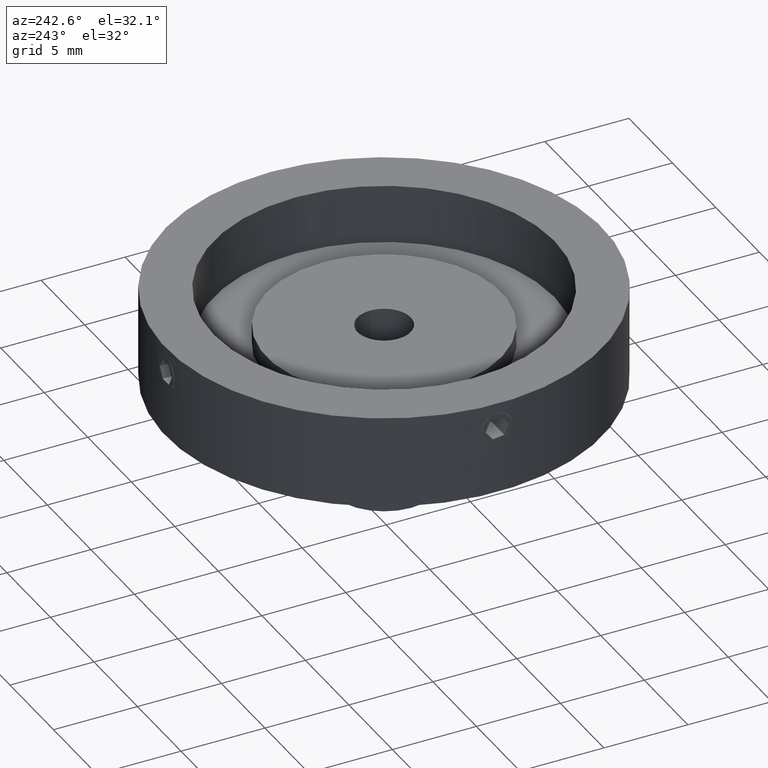
[diagram: clean part render]
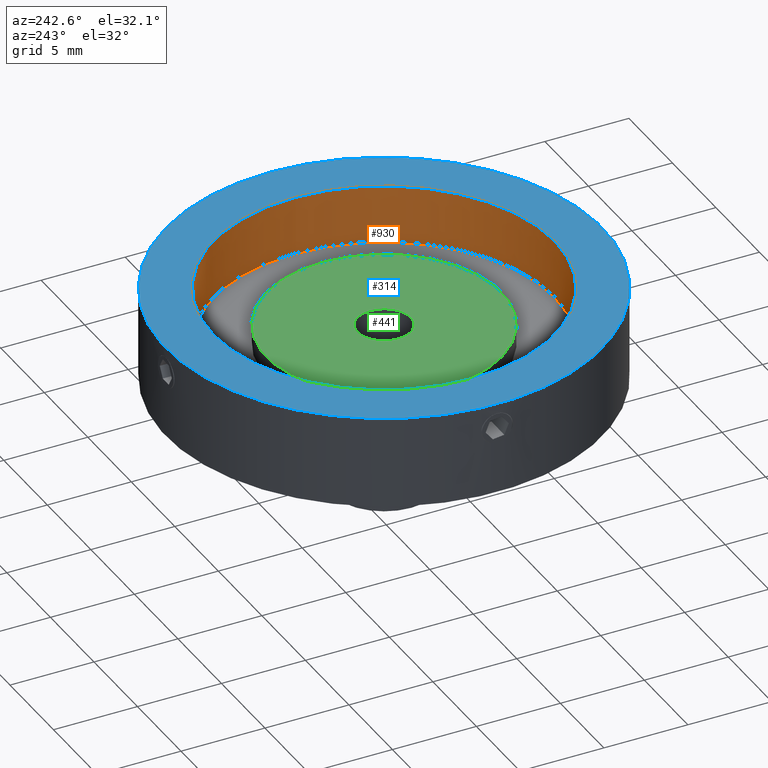
[diagram: same view with three faces highlighted in distinct colors, each labeled with its STEP entity id]
A machine part, auxiliary view with three faces highlighted in distinct colors.
Their STEP definitions:

[orange] entity #930 — the highlighted cylindrical surface (bore or boss wall) has radius 10.15 mm, axis along (-0, -0, 1).
#2 = CARTESIAN_POINT ( 'NONE',  ( -11.94095662322291700, -2.315469222874758000, 30.39359010343525500 ) ) ;
#20 = CIRCLE ( 'NONE', #438, 10.15000000000000000 ) ;
#28 = CARTESIAN_POINT ( 'NONE',  ( -2.462400004729964100, 8.614506576692752700, 30.99137819429888200 ) ) ;
#31 = CARTESIAN_POINT ( 'NONE',  ( -11.97082569492483700, -1.306087349653736000, 29.72082075555417200 ) ) ;
#40 = CARTESIAN_POINT ( 'NONE',  ( -1.419270293473195300, 8.626876235089652000, 31.19884406052706900 ) ) ;
#69 = ORIENTED_EDGE ( 'NONE', *, *, #523, .F. ) ;
#75 = CARTESIAN_POINT ( 'NONE',  ( -2.241173839156921100, 8.626865077204794100, 31.21295510663454200 ) ) ;
#132 = CARTESIAN_POINT ( 'NONE',  ( -11.97253057819572100, -1.724152397469301400, 29.69992440090064500 ) ) ;
#135 = DIRECTION ( 'NONE',  ( 0.0000000000000000000, 0.0000000000000000000, 1.000000000000000000 ) ) ;
#136 = CARTESIAN_POINT ( 'NONE',  ( -1.822524619646406000, 8.634426895241594100, 31.29999999999998600 ) ) ;
#137 = FACE_BOUND ( 'NONE', #710, .T. ) ;
#156 = CARTESIAN_POINT ( 'NONE',  ( -2.601472420877355000, 8.604573470972679800, 30.28971010464454800 ) ) ;
#171 = DIRECTION ( 'NONE',  ( 1.000000000000000000, 0.0000000000000000000, 0.0000000000000000000 ) ) ;
#219 = CARTESIAN_POINT ( 'NONE',  ( -1.022468295244913800, 8.602846232321409700, 30.39604295330277500 ) ) ;
#228 = CARTESIAN_POINT ( 'NONE',  ( -11.94263999665875000, -0.7362282699093550800, 30.29116393400530400 ) ) ;
#230 = CIRCLE ( 'NONE', #963, 10.15000000000000000 ) ;
#244 = CARTESIAN_POINT ( 'NONE',  ( -2.622420737762709600, 8.602858898818102100, 30.39359010343524800 ) ) ;
#254 = EDGE_CURVE ( 'NONE', #896, #896, #479, .T. ) ;
#279 = ORIENTED_EDGE ( 'NONE', *, *, #995, .T. ) ;
#289 = B_SPLINE_CURVE_WITH_KNOTS ( 'NONE', 3,
 ( #317, #984, #593, #924, #474, #967, #728, #397, #228, #1050, #641, #553, #573, #31, #709, #132, #591, #651, #811, #624, #2, #681, #801, #975, #677, #902, #407, #766 ),
 .UNSPECIFIED., .T., .F.,
 ( 4, 2, 2, 2, 2, 2, 2, 2, 2, 2, 2, 2, 2, 4 ),
 ( 0.0000000000000000000, 0.0003127306666120954900, 0.0006254613332241869700, 0.001250922666448377400, 0.001563653333060472600, 0.001876383999672567900, 0.002189114666284663100, 0.002501845332896758300, 0.003127306666120948600, 0.003440037332733046800, 0.003752767999345145400, 0.004065498665957243200, 0.004378229332569341800, 0.005003690665793538200 ),
 .UNSPECIFIED. ) ;
#304 = CARTESIAN_POINT ( 'NONE',  ( -1.043179784797307200, 8.604542272253931800, 30.29116393400529400 ) ) ;
#308 = FACE_BOUND ( 'NONE', #537, .T. ) ;
#317 = CARTESIAN_POINT ( 'NONE',  ( -11.97252461964640900, -1.515573104758453700, 31.29999999999997900 ) ) ;
#366 = EDGE_CURVE ( 'NONE', #770, #770, #289, .T. ) ;
#386 = CARTESIAN_POINT ( 'NONE',  ( -1.822524619646406000, -1.515573104758408500, 28.50000000000000000 ) ) ;
#391 = CARTESIAN_POINT ( 'NONE',  ( -1.181928938662014400, 8.614467705861852000, 30.00929430560848800 ) ) ;
#397 = CARTESIAN_POINT ( 'NONE',  ( -11.94094395672622800, -0.7155167803569610900, 30.39604295330277500 ) ) ;
#398 = DIRECTION ( 'NONE',  ( -0.0000000000000000000, -0.0000000000000000000, 1.000000000000000000 ) ) ;
#407 = CARTESIAN_POINT ( 'NONE',  ( -11.97252461964640500, -1.727068345373321800, 31.29999999999997900 ) ) ;
#437 = CARTESIAN_POINT ( 'NONE',  ( -1.822524619646406000, 8.634426895241592300, 31.29999999999998600 ) ) ;
#438 = AXIS2_PLACEMENT_3D ( 'NONE', #888, #135, #715 ) ;
#455 = ORIENTED_EDGE ( 'NONE', *, *, #366, .T. ) ;
#462 = EDGE_LOOP ( 'NONE', ( #279 ) ) ;
#470 = CARTESIAN_POINT ( 'NONE',  ( -1.331224257951217200, 8.622805148489298700, 29.85986028118676200 ) ) ;
#474 = CARTESIAN_POINT ( 'NONE',  ( -11.96086369468448000, -1.023598355428557500, 31.13941048014145000 ) ) ;
#479 = B_SPLINE_CURVE_WITH_KNOTS ( 'NONE', 3,
 ( #853, #510, #815, #40, #545, #631, #714, #219, #304, #887, #391, #470, #496, #564, #826, #919, #689, #891, #922, #156, #244, #872, #735, #789, #28, #75, #590, #437 ),
 .UNSPECIFIED., .T., .F.,
 ( 4, 2, 2, 2, 2, 2, 2, 2, 2, 2, 2, 2, 2, 4 ),
 ( 0.0000000000000000000, 0.0003127306666121009600, 0.0006254613332241979200, 0.001250922666448392400, 0.001563653333060489300, 0.001876383999672586400, 0.002189114666284683500, 0.002501845332896780800, 0.003127306666120975900, 0.003440037332733069800, 0.003752767999345163200, 0.004065498665957257100, 0.004378229332569351400, 0.005003690665793539100 ),
 .UNSPECIFIED. ) ;
#496 = CARTESIAN_POINT ( 'NONE',  ( -1.419230385288786900, 8.626874960507841200, 29.80117360016890900 ) ) ;
#510 = CARTESIAN_POINT ( 'NONE',  ( -1.716776999338973000, 8.634426895241592300, 31.29999999999998600 ) ) ;
#523 = EDGE_CURVE ( 'NONE', #526, #526, #230, .T. ) ;
#526 = VERTEX_POINT ( 'NONE', #1041 ) ;
#537 = EDGE_LOOP ( 'NONE', ( #978 ) ) ;
#545 = CARTESIAN_POINT ( 'NONE',  ( -1.330549870316510600, 8.622765970279660400, 31.13941048014146400 ) ) ;
#553 = CARTESIAN_POINT ( 'NONE',  ( -11.96090287289411900, -1.024272743063265900, 29.85986028118676600 ) ) ;
#564 = CARTESIAN_POINT ( 'NONE',  ( -1.613038864541686900, 8.632727970520022600, 29.72082075555415800 ) ) ;
#573 = CARTESIAN_POINT ( 'NONE',  ( -11.96497268491265900, -1.112278870400835500, 29.80117360016893000 ) ) ;
#574 = CARTESIAN_POINT ( 'NONE',  ( 8.327475380353595500, -1.515573104758408500, 32.00000000000000000 ) ) ;
#590 = CARTESIAN_POINT ( 'NONE',  ( -2.034019860261267400, 8.634426895241592300, 31.29999999999998600 ) ) ;
#591 = CARTESIAN_POINT ( 'NONE',  ( -11.96501313104256800, -1.933060355219209200, 29.78640181185440400 ) ) ;
#593 = CARTESIAN_POINT ( 'NONE',  ( -11.97082485867857900, -1.306061956078418100, 31.27916760141200600 ) ) ;
#624 = CARTESIAN_POINT ( 'NONE',  ( -11.94267119537748700, -2.294520905989401600, 30.28971010464453400 ) ) ;
#631 = CARTESIAN_POINT ( 'NONE',  ( -1.109252397606311800, 8.610412089530283800, 30.91806985258177300 ) ) ;
#641 = CARTESIAN_POINT ( 'NONE',  ( -11.95256543026666800, -0.8749774237740624000, 30.00929430560849600 ) ) ;
#650 = EDGE_LOOP ( 'NONE', ( #69 ) ) ;
#651 = CARTESIAN_POINT ( 'NONE',  ( -11.95266239095721200, -2.154537842664442600, 30.00745197359222200 ) ) ;
#663 = AXIS2_PLACEMENT_3D ( 'NONE', #386, #398, #171 ) ;
#672 = CARTESIAN_POINT ( 'NONE',  ( -1.822524619646406000, -1.515573104758408500, 28.50000000000000000 ) ) ;
#677 = CARTESIAN_POINT ( 'NONE',  ( -11.95260430109756600, -2.155448489842012100, 30.99137819429888200 ) ) ;
#681 = CARTESIAN_POINT ( 'NONE',  ( -11.94094025738691300, -2.315676218555060600, 30.60484213445664600 ) ) ;
#689 = CARTESIAN_POINT ( 'NONE',  ( -2.240011870107153000, 8.626915406637754900, 29.78640181185442500 ) ) ;
#709 = CARTESIAN_POINT ( 'NONE',  ( -11.97252163416787800, -1.410848823004692300, 29.70003787826133000 ) ) ;
#710 = EDGE_LOOP ( 'NONE', ( #455 ) ) ;
#714 = CARTESIAN_POINT ( 'NONE',  ( -1.022637619250829700, 8.602859619701464000, 30.70921172455092600 ) ) ;
#715 = DIRECTION ( 'NONE',  ( 1.000000000000000000, 0.0000000000000000000, 0.0000000000000000000 ) ) ;
#716 = CARTESIAN_POINT ( 'NONE',  ( -11.97252461964640700, -1.515573104758453700, 31.29999999999998600 ) ) ;
#728 = CARTESIAN_POINT ( 'NONE',  ( -11.94095734410628400, -0.7156861043628772700, 30.70921172455092600 ) ) ;
#735 = CARTESIAN_POINT ( 'NONE',  ( -2.601916589393026500, 8.604538800233246600, 30.70871536800398600 ) ) ;
#766 = CARTESIAN_POINT ( 'NONE',  ( -11.97252461964640900, -1.515573104758453700, 31.29999999999997900 ) ) ;
#770 = VERTEX_POINT ( 'NONE', #716 ) ;
#778 = DIRECTION ( 'NONE',  ( 0.0000000000000000000, 0.0000000000000000000, 1.000000000000000000 ) ) ;
#789 = CARTESIAN_POINT ( 'NONE',  ( -2.521710987349081300, 8.610396243174559300, 30.90268147531925200 ) ) ;
#801 = CARTESIAN_POINT ( 'NONE',  ( -11.94263652463805800, -2.294965074505072300, 30.70871536800399000 ) ) ;
#811 = CARTESIAN_POINT ( 'NONE',  ( -11.94854149119895000, -2.214077727762025400, 30.09617725574977600 ) ) ;
#814 = VERTEX_POINT ( 'NONE', #574 ) ;
#815 = CARTESIAN_POINT ( 'NONE',  ( -1.613013470966371000, 8.632727134273764600, 31.27916760141200600 ) ) ;
#826 = CARTESIAN_POINT ( 'NONE',  ( -1.717800337892642500, 8.634423909763063100, 29.70003787826133400 ) ) ;
#853 = CARTESIAN_POINT ( 'NONE',  ( -1.822524619646406000, 8.634426895241592300, 31.29999999999998600 ) ) ;
#872 = CARTESIAN_POINT ( 'NONE',  ( -2.622627733443012100, 8.602842532982105400, 30.60484213445664600 ) ) ;
#887 = CARTESIAN_POINT ( 'NONE',  ( -1.123306069337658200, 8.610393863119355700, 30.09740306388367500 ) ) ;
#888 = CARTESIAN_POINT ( 'NONE',  ( -1.822524619646406000, -1.515573104758408500, 32.00000000000000000 ) ) ;
#891 = CARTESIAN_POINT ( 'NONE',  ( -2.461489357552392400, 8.614564666552396900, 30.00745197359222200 ) ) ;
#896 = VERTEX_POINT ( 'NONE', #136 ) ;
#902 = CARTESIAN_POINT ( 'NONE',  ( -11.96496280160960900, -1.934222324268969800, 31.21295510663455300 ) ) ;
#912 = FACE_OUTER_BOUND ( 'NONE', #650, .T. ) ;
#919 = CARTESIAN_POINT ( 'NONE',  ( -2.031103912357251900, 8.634432853790905000, 29.69992440090065200 ) ) ;
#922 = CARTESIAN_POINT ( 'NONE',  ( -2.521029242649976500, 8.610443766794135800, 30.09617725574977200 ) ) ;
#924 = CARTESIAN_POINT ( 'NONE',  ( -11.96497395949446500, -1.112318778585243100, 31.19884406052705800 ) ) ;
#930 = ADVANCED_FACE ( 'NONE', ( #137, #308, #912, #994 ), #943, .F. ) ;
#943 = CYLINDRICAL_SURFACE ( 'NONE', #663, 10.15000000000000000 ) ;
#963 = AXIS2_PLACEMENT_3D ( 'NONE', #672, #778, #1024 ) ;
#967 = CARTESIAN_POINT ( 'NONE',  ( -11.94850981393509700, -0.8023008827183596400, 30.91806985258174800 ) ) ;
#975 = CARTESIAN_POINT ( 'NONE',  ( -11.94849396757937200, -2.214759472461128800, 30.90268147531925900 ) ) ;
#978 = ORIENTED_EDGE ( 'NONE', *, *, #254, .T. ) ;
#984 = CARTESIAN_POINT ( 'NONE',  ( -11.97252461964641100, -1.409825484451020700, 31.29999999999997900 ) ) ;
#994 = FACE_OUTER_BOUND ( 'NONE', #462, .T. ) ;
#995 = EDGE_CURVE ( 'NONE', #814, #814, #20, .T. ) ;
#1024 = DIRECTION ( 'NONE',  ( 1.000000000000000000, 0.0000000000000000000, 0.0000000000000000000 ) ) ;
#1041 = CARTESIAN_POINT ( 'NONE',  ( 8.327475380353595500, -1.515573104758408500, 28.50000000000000000 ) ) ;
#1050 = CARTESIAN_POINT ( 'NONE',  ( -11.94849158752417900, -0.8163545544497065000, 30.09740306388368900 ) ) ;

[blue] entity #314 — the highlighted planar face has unit normal (0, 0, 1).
#20 = CIRCLE ( 'NONE', #438, 10.15000000000000000 ) ;
#80 = VERTEX_POINT ( 'NONE', #131 ) ;
#84 = EDGE_LOOP ( 'NONE', ( #539 ) ) ;
#131 = CARTESIAN_POINT ( 'NONE',  ( 11.17747538035359500, -1.515573104758408500, 32.00000000000000000 ) ) ;
#135 = DIRECTION ( 'NONE',  ( 0.0000000000000000000, 0.0000000000000000000, 1.000000000000000000 ) ) ;
#154 = DIRECTION ( 'NONE',  ( 0.0000000000000000000, 0.0000000000000000000, 1.000000000000000000 ) ) ;
#232 = CARTESIAN_POINT ( 'NONE',  ( -1.822524619646406000, -1.515573104758408500, 32.00000000000000000 ) ) ;
#314 = ADVANCED_FACE ( 'NONE', ( #941, #471 ), #1058, .T. ) ;
#319 = DIRECTION ( 'NONE',  ( 1.000000000000000000, 0.0000000000000000000, -0.0000000000000000000 ) ) ;
#422 = EDGE_CURVE ( 'NONE', #80, #80, #1066, .T. ) ;
#438 = AXIS2_PLACEMENT_3D ( 'NONE', #888, #135, #715 ) ;
#460 = DIRECTION ( 'NONE',  ( 1.000000000000000000, 0.0000000000000000000, 0.0000000000000000000 ) ) ;
#471 = FACE_OUTER_BOUND ( 'NONE', #480, .T. ) ;
#480 = EDGE_LOOP ( 'NONE', ( #649 ) ) ;
#539 = ORIENTED_EDGE ( 'NONE', *, *, #995, .F. ) ;
#574 = CARTESIAN_POINT ( 'NONE',  ( 8.327475380353595500, -1.515573104758408500, 32.00000000000000000 ) ) ;
#649 = ORIENTED_EDGE ( 'NONE', *, *, #422, .T. ) ;
#679 = AXIS2_PLACEMENT_3D ( 'NONE', #1040, #962, #460 ) ;
#715 = DIRECTION ( 'NONE',  ( 1.000000000000000000, 0.0000000000000000000, 0.0000000000000000000 ) ) ;
#814 = VERTEX_POINT ( 'NONE', #574 ) ;
#888 = CARTESIAN_POINT ( 'NONE',  ( -1.822524619646406000, -1.515573104758408500, 32.00000000000000000 ) ) ;
#941 = FACE_BOUND ( 'NONE', #84, .T. ) ;
#962 = DIRECTION ( 'NONE',  ( 0.0000000000000000000, 0.0000000000000000000, 1.000000000000000000 ) ) ;
#995 = EDGE_CURVE ( 'NONE', #814, #814, #20, .T. ) ;
#1022 = AXIS2_PLACEMENT_3D ( 'NONE', #232, #154, #319 ) ;
#1040 = CARTESIAN_POINT ( 'NONE',  ( -1.822524619646406000, -1.515573104758408500, 32.00000000000000000 ) ) ;
#1058 = PLANE ( 'NONE',  #1022 ) ;
#1066 = CIRCLE ( 'NONE', #679, 13.00000000000000200 ) ;

[green] entity #441 — the highlighted planar face has unit normal (0, 0, 1).
#26 = DIRECTION ( 'NONE',  ( 1.000000000000000000, 0.0000000000000000000, -0.0000000000000000000 ) ) ;
#81 = EDGE_LOOP ( 'NONE', ( #174 ) ) ;
#108 = DIRECTION ( 'NONE',  ( 1.000000000000000000, 0.0000000000000000000, 0.0000000000000000000 ) ) ;
#118 = FACE_BOUND ( 'NONE', #81, .T. ) ;
#160 = CIRCLE ( 'NONE', #333, 1.590000000000000100 ) ;
#174 = ORIENTED_EDGE ( 'NONE', *, *, #757, .F. ) ;
#239 = CARTESIAN_POINT ( 'NONE',  ( -1.822524619646406000, -1.515573104758408500, 29.69999999999999900 ) ) ;
#294 = CARTESIAN_POINT ( 'NONE',  ( -0.2325246196464060300, -1.515573104758408500, 29.69999999999999900 ) ) ;
#333 = AXIS2_PLACEMENT_3D ( 'NONE', #457, #680, #108 ) ;
#392 = DIRECTION ( 'NONE',  ( 0.0000000000000000000, 0.0000000000000000000, 1.000000000000000000 ) ) ;
#441 = ADVANCED_FACE ( 'NONE', ( #118, #690 ), #870, .T. ) ;
#443 = DIRECTION ( 'NONE',  ( 1.000000000000000000, 0.0000000000000000000, 0.0000000000000000000 ) ) ;
#457 = CARTESIAN_POINT ( 'NONE',  ( -1.822524619646406000, -1.515573104758408500, 29.69999999999999900 ) ) ;
#592 = EDGE_LOOP ( 'NONE', ( #884 ) ) ;
#616 = DIRECTION ( 'NONE',  ( 0.0000000000000000000, 0.0000000000000000000, 1.000000000000000000 ) ) ;
#625 = AXIS2_PLACEMENT_3D ( 'NONE', #784, #616, #26 ) ;
#629 = CIRCLE ( 'NONE', #938, 7.000000000000000000 ) ;
#680 = DIRECTION ( 'NONE',  ( 0.0000000000000000000, 0.0000000000000000000, 1.000000000000000000 ) ) ;
#690 = FACE_OUTER_BOUND ( 'NONE', #592, .T. ) ;
#708 = CARTESIAN_POINT ( 'NONE',  ( 5.177475380353594200, -1.515573104758408500, 29.69999999999999900 ) ) ;
#757 = EDGE_CURVE ( 'NONE', #807, #807, #160, .T. ) ;
#784 = CARTESIAN_POINT ( 'NONE',  ( -1.822524619646406000, -1.515573104758408500, 29.69999999999999900 ) ) ;
#807 = VERTEX_POINT ( 'NONE', #294 ) ;
#870 = PLANE ( 'NONE',  #625 ) ;
#884 = ORIENTED_EDGE ( 'NONE', *, *, #923, .T. ) ;
#923 = EDGE_CURVE ( 'NONE', #955, #955, #629, .T. ) ;
#938 = AXIS2_PLACEMENT_3D ( 'NONE', #239, #392, #443 ) ;
#955 = VERTEX_POINT ( 'NONE', #708 ) ;